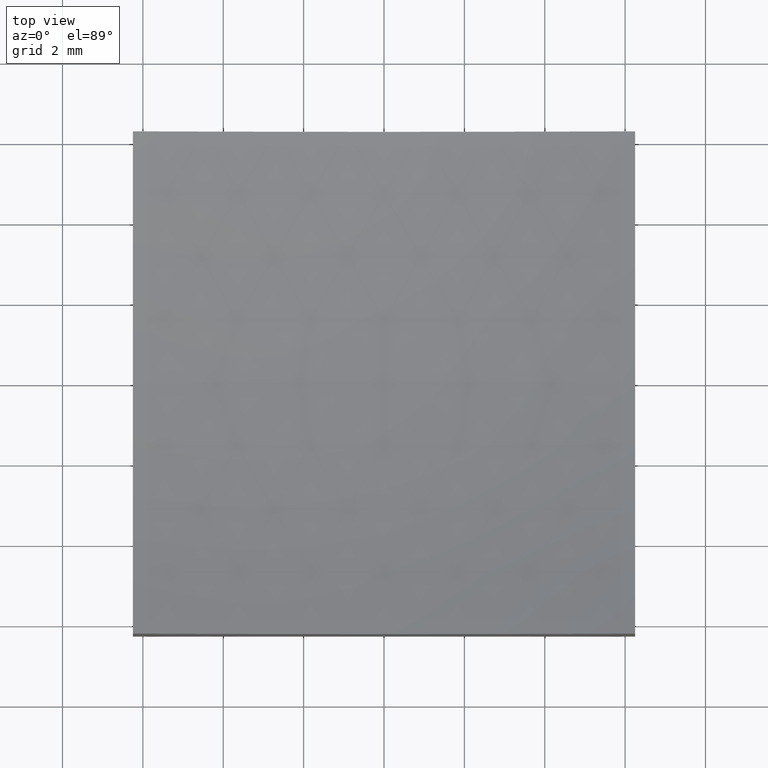
[diagram: clean part render]
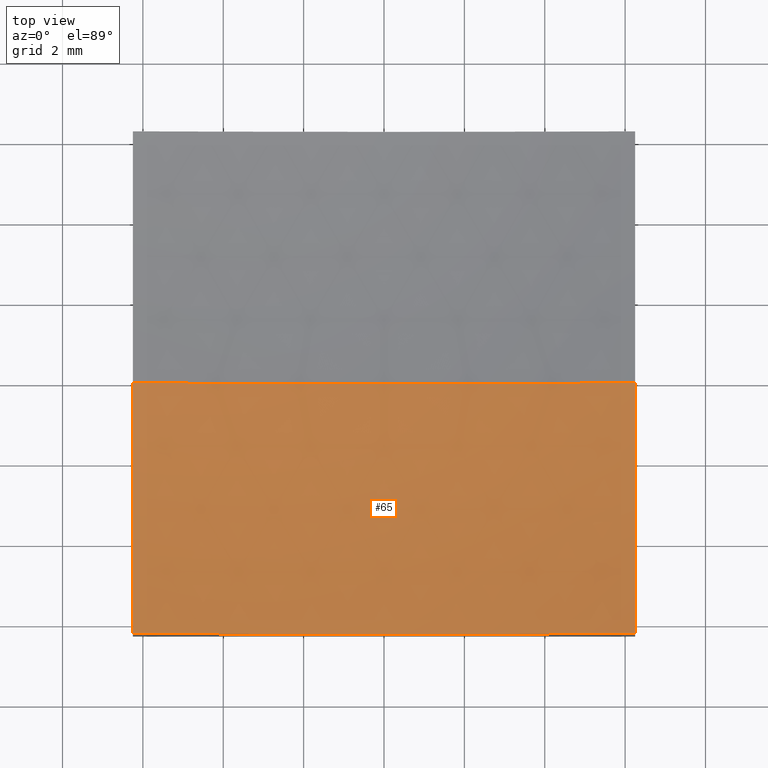
[diagram: same view with one face highlighted and labeled with its STEP entity id]
A machine part, top view. The second image highlights one B-rep face of the part: STEP entity #65.
In plain terms, the highlighted spherical surface has radius 30 mm.
Its self-contained STEP definition (entity closure, byte-faithful):
#1 = DIRECTION ( 'NONE',  ( 0.0000000000000000000, 0.0000000000000000000, -1.000000000000000000 ) ) ;
#6 = VERTEX_POINT ( 'NONE', #169 ) ;
#10 = CIRCLE ( 'NONE', #32, 30.00000000000000000 ) ;
#15 = DIRECTION ( 'NONE',  ( 1.000000000000000000, 0.0000000000000000000, -0.0000000000000000000 ) ) ;
#20 = AXIS2_PLACEMENT_3D ( 'NONE', #250, #109, #92 ) ;
#22 = FACE_OUTER_BOUND ( 'NONE', #227, .T. ) ;
#26 = AXIS2_PLACEMENT_3D ( 'NONE', #218, #199, #77 ) ;
#32 = AXIS2_PLACEMENT_3D ( 'NONE', #108, #198, #55 ) ;
#34 = AXIS2_PLACEMENT_3D ( 'NONE', #193, #15, #232 ) ;
#41 = CARTESIAN_POINT ( 'NONE',  ( -6.250000000000000000, 0.0000000000000000000, 33.00000000000000000 ) ) ;
#50 = SPHERICAL_SURFACE ( 'NONE', #26, 30.00000000000000000 ) ;
#54 = AXIS2_PLACEMENT_3D ( 'NONE', #69, #110, #172 ) ;
#55 = DIRECTION ( 'NONE',  ( 0.0000000000000000000, 0.0000000000000000000, -1.000000000000000000 ) ) ;
#60 = ORIENTED_EDGE ( 'NONE', *, *, #133, .T. ) ;
#62 = ORIENTED_EDGE ( 'NONE', *, *, #115, .F. ) ;
#65 = ADVANCED_FACE ( 'NONE', ( #22 ), #50, .F. ) ;
#69 = CARTESIAN_POINT ( 'NONE',  ( 4.041334437186266200E-15, 0.0000000000000000000, 33.00000000000000000 ) ) ;
#77 = DIRECTION ( 'NONE',  ( 1.000000000000000000, 0.0000000000000000000, 0.0000000000000000000 ) ) ;
#81 = CIRCLE ( 'NONE', #90, 29.34173648576375726 ) ;
#82 = EDGE_CURVE ( 'NONE', #184, #244, #10, .T. ) ;
#87 = VERTEX_POINT ( 'NONE', #151 ) ;
#90 = AXIS2_PLACEMENT_3D ( 'NONE', #41, #252, #1 ) ;
#92 = DIRECTION ( 'NONE',  ( 0.0000000000000000000, 0.0000000000000000000, 1.000000000000000000 ) ) ;
#98 = ORIENTED_EDGE ( 'NONE', *, *, #152, .F. ) ;
#102 = ORIENTED_EDGE ( 'NONE', *, *, #111, .T. ) ;
#108 = CARTESIAN_POINT ( 'NONE',  ( 4.041334437186266200E-15, 0.0000000000000000000, 33.00000000000000000 ) ) ;
#109 = DIRECTION ( 'NONE',  ( 0.0000000000000000000, 1.000000000000000000, 0.0000000000000000000 ) ) ;
#110 = DIRECTION ( 'NONE',  ( 1.224646799147353207E-16, 1.000000000000000000, -2.794487877293521161E-33 ) ) ;
#111 = EDGE_CURVE ( 'NONE', #184, #87, #154, .T. ) ;
#115 = EDGE_CURVE ( 'NONE', #6, #87, #81, .T. ) ;
#121 = VERTEX_POINT ( 'NONE', #216 ) ;
#133 = EDGE_CURVE ( 'NONE', #121, #244, #138, .T. ) ;
#138 = CIRCLE ( 'NONE', #34, 29.34173648576375726 ) ;
#151 = CARTESIAN_POINT ( 'NONE',  ( -6.250000000000000000, 7.654042494670961551E-16, 3.658263514236247627 ) ) ;
#152 = EDGE_CURVE ( 'NONE', #121, #6, #239, .T. ) ;
#154 = CIRCLE ( 'NONE', #54, 30.00000000000000000 ) ;
#169 = CARTESIAN_POINT ( 'NONE',  ( -6.250000000000000000, -6.250000000000000888, 4.331637647050714079 ) ) ;
#172 = DIRECTION ( 'NONE',  ( -1.000000000000000000, 1.224646799147352961E-16, 0.0000000000000000000 ) ) ;
#184 = VERTEX_POINT ( 'NONE', #185 ) ;
#185 = CARTESIAN_POINT ( 'NONE',  ( 5.193742880002045651E-15, 0.0000000000000000000, 3.000000000000002665 ) ) ;
#193 = CARTESIAN_POINT ( 'NONE',  ( 6.250000000000000000, 0.0000000000000000000, 33.00000000000000000 ) ) ;
#195 = ORIENTED_EDGE ( 'NONE', *, *, #82, .F. ) ;
#198 = DIRECTION ( 'NONE',  ( 0.0000000000000000000, -1.000000000000000000, -0.0000000000000000000 ) ) ;
#199 = DIRECTION ( 'NONE',  ( -0.0000000000000000000, 1.000000000000000000, 0.0000000000000000000 ) ) ;
#216 = CARTESIAN_POINT ( 'NONE',  ( 6.250000000000000000, -6.250000000000000888, 4.331637647050714079 ) ) ;
#218 = CARTESIAN_POINT ( 'NONE',  ( 4.041334437186266200E-15, 0.0000000000000000000, 33.00000000000000000 ) ) ;
#227 = EDGE_LOOP ( 'NONE', ( #195, #102, #62, #98, #60 ) ) ;
#232 = DIRECTION ( 'NONE',  ( 0.0000000000000000000, 0.0000000000000000000, -1.000000000000000000 ) ) ;
#239 = CIRCLE ( 'NONE', #20, 29.34173648576375726 ) ;
#244 = VERTEX_POINT ( 'NONE', #251 ) ;
#250 = CARTESIAN_POINT ( 'NONE',  ( 4.041334437186266200E-15, -6.250000000000000888, 33.00000000000000000 ) ) ;
#251 = CARTESIAN_POINT ( 'NONE',  ( 6.250000000000000000, 0.0000000000000000000, 3.658263514236247627 ) ) ;
#252 = DIRECTION ( 'NONE',  ( 1.000000000000000000, 0.0000000000000000000, -0.0000000000000000000 ) ) ;